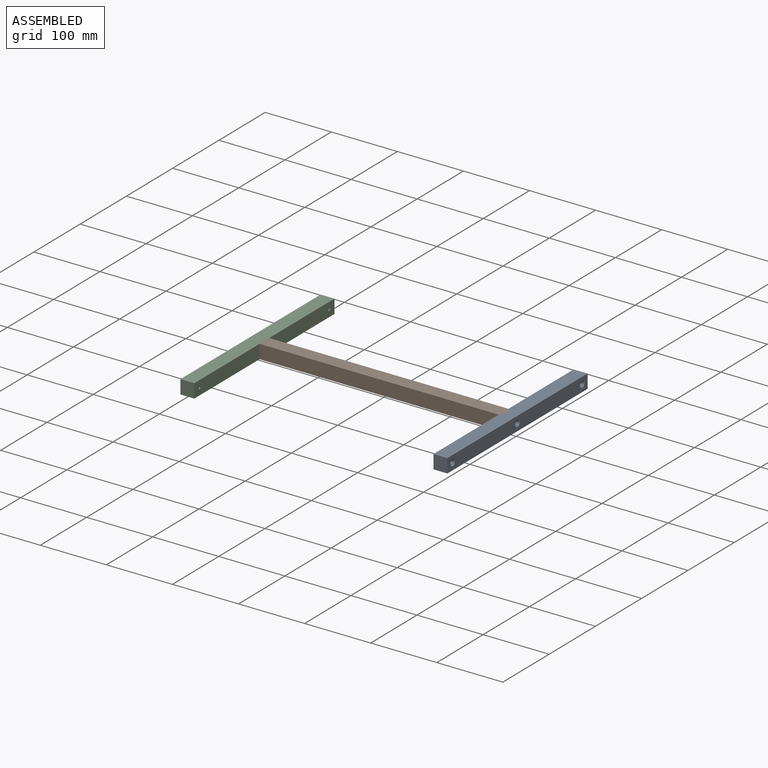
[diagram: assembled view]
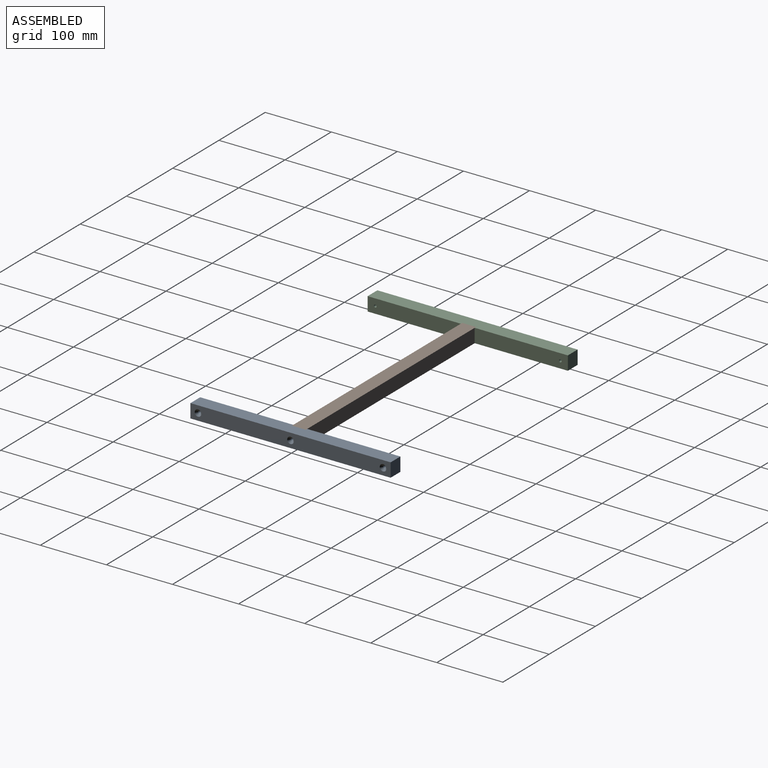
[diagram: assembled view, second angle]
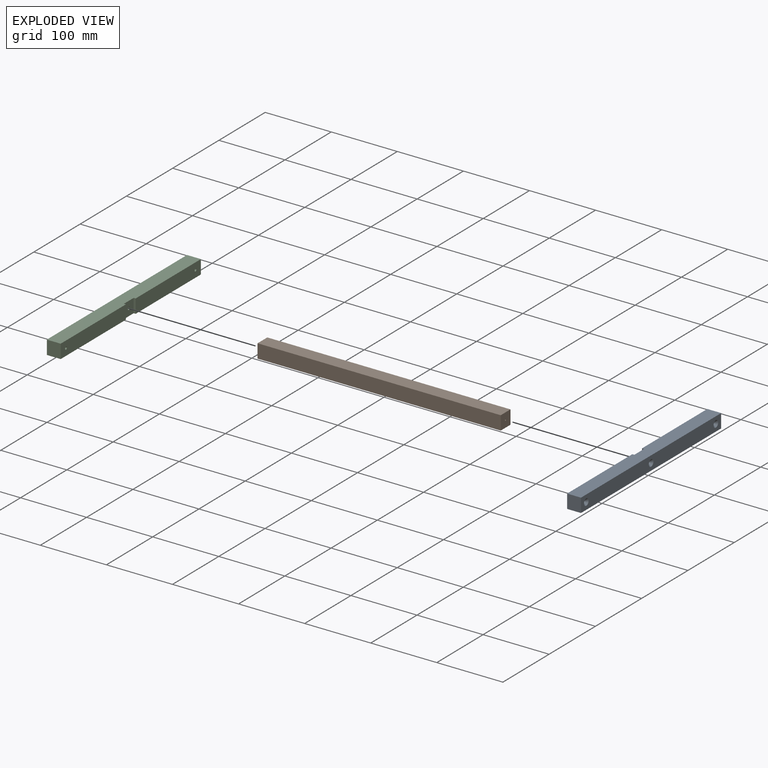
[diagram: exploded view]
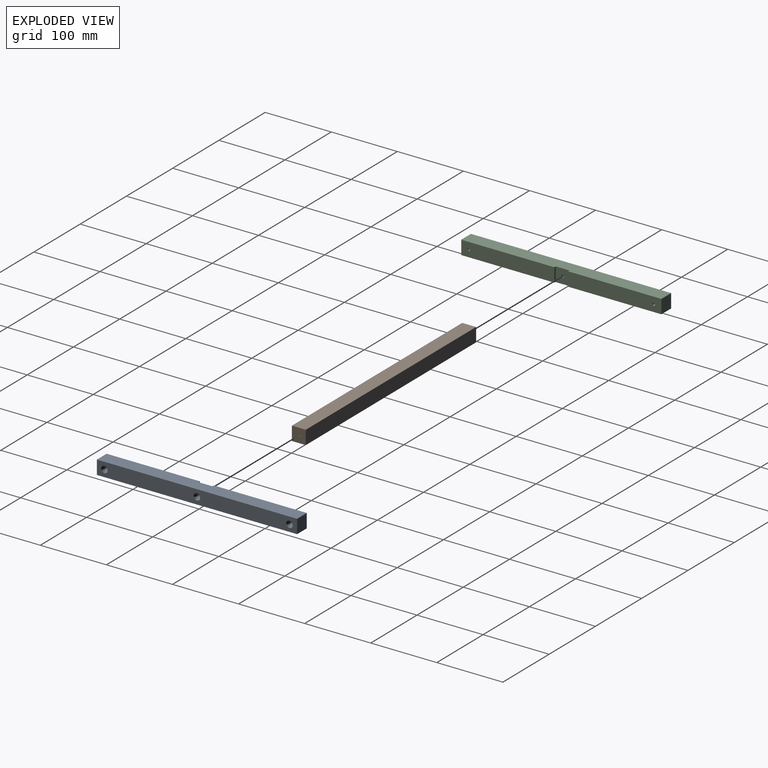
[diagram: exploded view, second angle]
ASSEMBLY  parts=3 mates=4
PART A: 16 faces, bbox 21x303x21 mm
  f0: plane 303x21mm, normal (0,0,-1), area 6300mm2, adj f1,f3,f4,f7,f8,f9,f10,f13
  f1: plane 303x21mm, normal (1,0,0), area 6127.4mm2, adj f0,f2,f4,f6,f10,f12,f15
  f2: plane 303x21mm, normal (0,0,1), area 6300mm2, adj f1,f3,f4,f7,f8,f9,f10,f13
  f3: plane 141x21mm, normal (-1,0,0), area 2948.4mm2, adj f0,f2,f4,f5,f7
  f4: plane 21x21mm, normal (0,-1,0), area 441mm2, adj f0,f1,f2,f3
  f5: cylinder r=2mm len=18mm, axis (1,0,0), area 226.2mm2, adj f3,f6
  f6: cone r=2mm half-angle=45deg, axis (1,0,0), area 93.3mm2, adj f1,f5
  f7: plane 21x3mm, normal (0,1,0), area 63mm2, adj f0,f2,f3,f8
  f8: plane 21x21mm, normal (-1,0,0), area 428.4mm2, adj f0,f2,f7,f13,f14
  f9: plane 141x21mm, normal (-1,0,0), area 2948.4mm2, adj f0,f2,f10,f11,f13
  f10: plane 21x21mm, normal (0,1,0), area 441mm2, adj f0,f1,f2,f9
  f11: cylinder r=2mm len=18mm, axis (1,0,0), area 226.2mm2, adj f9,f12
  f12: cone r=2mm half-angle=45deg, axis (1,0,0), area 93.3mm2, adj f1,f11
  f13: plane 21x3mm, normal (0,-1,0), area 63mm2, adj f0,f2,f8,f9
  f14: cylinder r=2mm len=15mm, axis (1,0,0), area 188.5mm2, adj f8,f15
  f15: cone r=2mm half-angle=45deg, axis (1,0,0), area 93.3mm2, adj f1,f14
PART B: 10 faces, bbox 368x21x21 mm
  f0: plane 368x21mm, normal (0,1,0), area 7728mm2, adj f1,f3,f4,f7
  f1: plane 368x21mm, normal (0,0,1), area 7728mm2, adj f0,f2,f4,f7
  f2: plane 368x21mm, normal (0,-1,0), area 7728mm2, adj f1,f3,f4,f7
  f3: plane 368x21mm, normal (0,0,-1), area 7728mm2, adj f0,f2,f4,f7
  f4: plane 21x21mm, normal (1,0,0), area 437.9mm2, adj f0,f1,f2,f3,f5
  f5: cylinder r=1mm len=32mm, axis (1,0,0), area 201.1mm2, adj f4,f6
  f6: cone r=0mm half-angle=59deg, axis (1,0,0), area 3.7mm2, adj f5
  f7: plane 21x21mm, normal (-1,0,0), area 437.9mm2, adj f0,f1,f2,f3,f8
  f8: cylinder r=1mm len=32mm, axis (-1,0,0), area 201.1mm2, adj f7,f9
  f9: cone r=0mm half-angle=59deg, axis (-1,0,0), area 3.7mm2, adj f8
PART C: same geometry as A
PLACE A at identity
PLACE B at identity fixed
PLACE C rot(axis=(0,-1,0),180deg) t=(0,0,21)mm
MATE slider B.f6 <-> A.f14  axis (1,0,0) through (184,0,10.5)mm
MATE slider B.f9 <-> C.f14  axis (-1,0,0) through (-184,0,10.5)mm
MATE planar B.f6 <-> A.f14  axis (1,0,0) through (184,0,10.5)mm
MATE planar C.f14 <-> B.f9  axis (1,0,0) through (-184,0,10.5)mm
